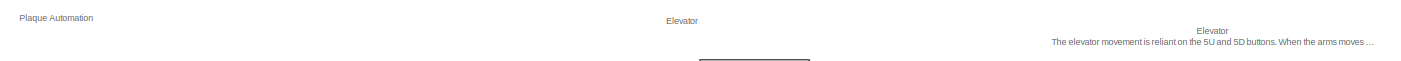
[diagram: root canvas - part 1/6, top center region]
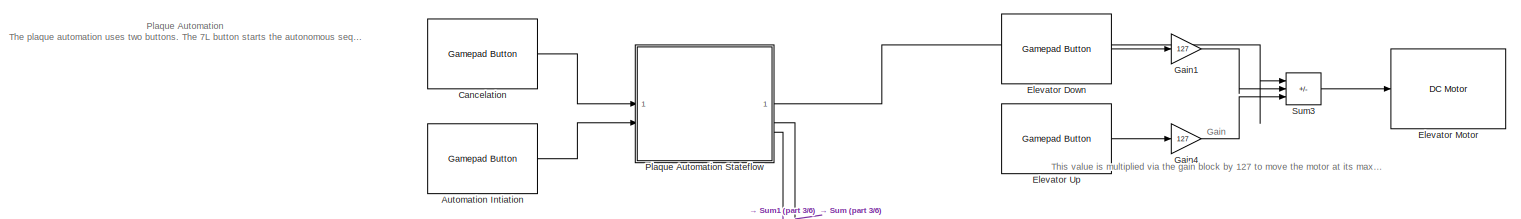
[diagram: root canvas - part 2/6, full width, top band]
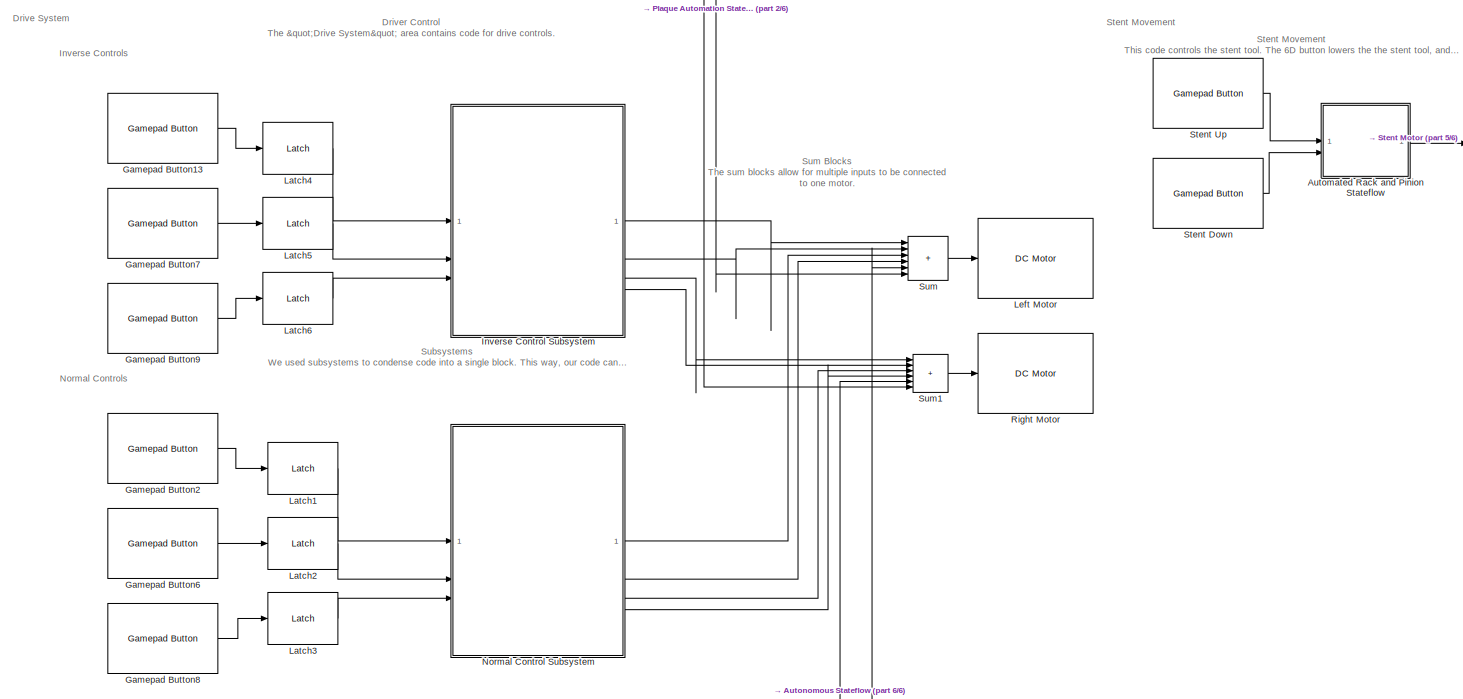
[diagram: root canvas - part 3/6, central region]
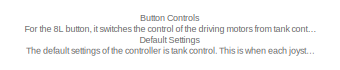
[diagram: root canvas - part 4/6, top left region]
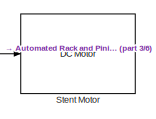
[diagram: root canvas - part 5/6, top right region]
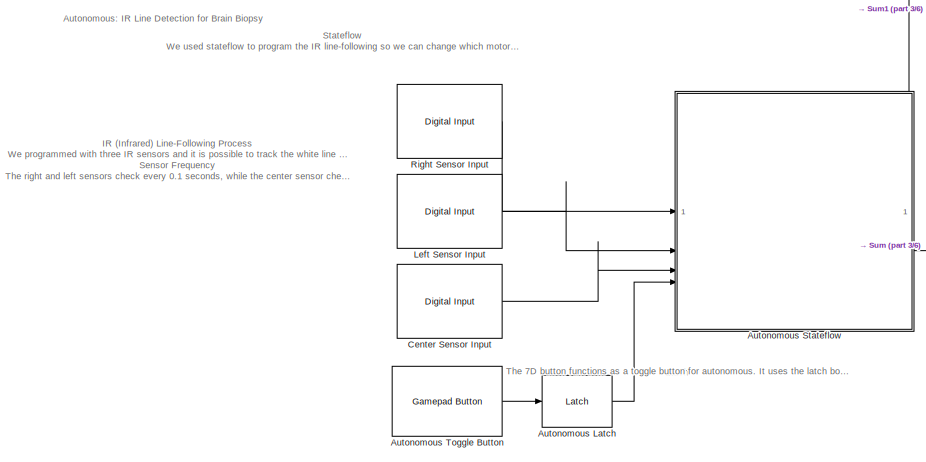
[diagram: root canvas - part 6/6, bottom center region]
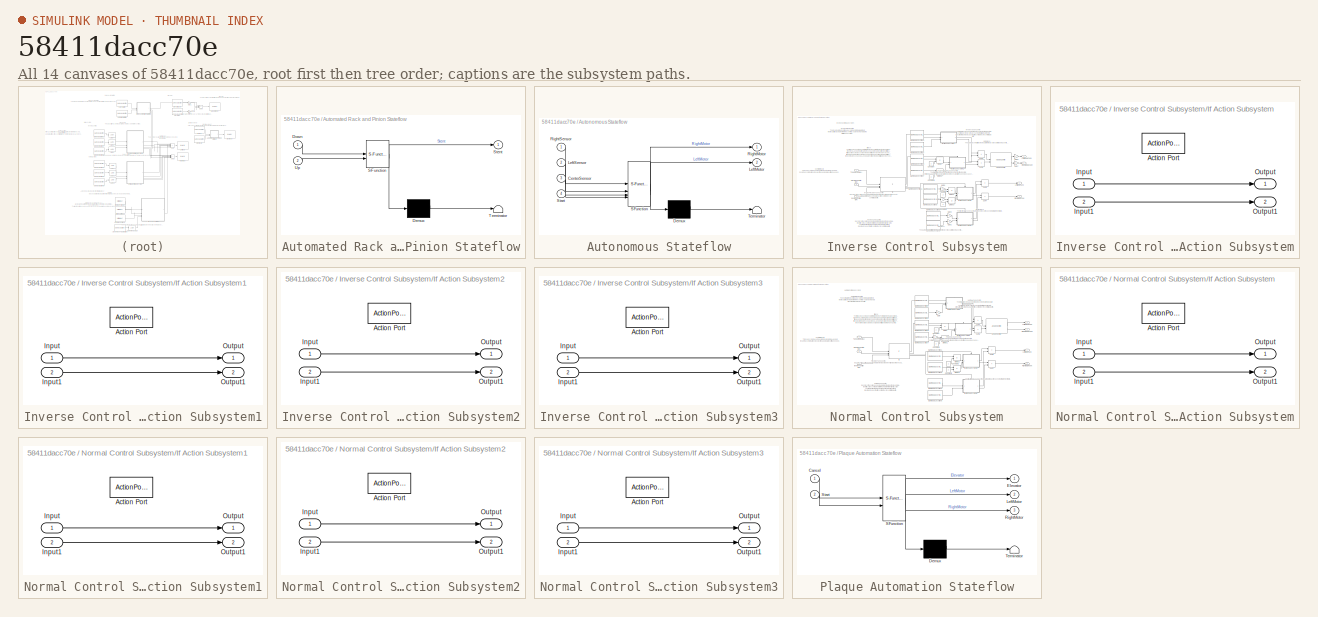
[diagram: thumbnail index - all 14 canvases of the model, root first then tree order]
MODEL slx_58411dacc70e
KIND model
CONFIG AbsTol = auto
CONFIG EnableMultiTasking = off
CONFIG FixedStep = auto
CONFIG MaxStep = auto
CONFIG MinStep = auto
CONFIG RelTol = 1e-3
CONFIG SampleTimeConstraint = Unconstrained
CONFIG SolverName = VariableStepAuto
CONFIG StartTime = 0.0
CONFIG StopTime = 10.0
BLOCK [SubSystem] Automated Rack and Pinion Stateflow
  AncestorBlock = RoboticsPlayground/Utilities and Hardware/Stateflow
  ErrorFcn = Stateflow.Translate.translate
  LibrarySourceBlock = RoboticsPlayground/Utilities and Hardware/Stateflow
  PermitHierarchicalResolution = ExplicitOnly
  SFBlockType = Chart
  TreatAsAtomicUnit = on
BLOCK [Demux] Automated Rack and Pinion Stateflow/ Demux 
  Outputs = 1
BLOCK [S-Function] Automated Rack and Pinion Stateflow/ SFunction 
  EnableBusSupport = on
  FunctionName = sf_sfun
  PortCounts = [2 2]
  SFcnIsStateOwnerBlock = off
  SFunctionDeploymentMode = off
  Tag = Stateflow S-Function 4
BLOCK [Terminator] Automated Rack and Pinion Stateflow/ Terminator 
BLOCK [Inport] Automated Rack and Pinion Stateflow/Down
BLOCK [Outport] Automated Rack and Pinion Stateflow/Stent
BLOCK [Inport] Automated Rack and Pinion Stateflow/Up
  Port = 2
BLOCK [Reference] Automation Intiation  REF=vexarmcortexlib/Gamepad/Gamepad Button
  SourceBlock = vexarmcortexlib/Gamepad/Gamepad Button
  SourceType = Gamepad Button
BLOCK [Reference] Autonomous Latch  REF=vexcommonlib/Latch
  LibrarySourceBlock = vexv5lib/Utilities/Latch
  SourceBlock = vexcommonlib/Latch
  SourceType = Latch
BLOCK [SubSystem] Autonomous Stateflow
  AncestorBlock = RoboticsPlayground/Utilities and Hardware/Stateflow
  ErrorFcn = Stateflow.Translate.translate
  LibrarySourceBlock = RoboticsPlayground/Utilities and Hardware/Stateflow
  PermitHierarchicalResolution = ExplicitOnly
  SFBlockType = Chart
  TreatAsAtomicUnit = on
BLOCK [Demux] Autonomous Stateflow/ Demux 
  Outputs = 1
BLOCK [S-Function] Autonomous Stateflow/ SFunction 
  EnableBusSupport = on
  FunctionName = sf_sfun
  PortCounts = [4 3]
  SFcnIsStateOwnerBlock = off
  SFunctionDeploymentMode = off
  Tag = Stateflow S-Function 3
BLOCK [Terminator] Autonomous Stateflow/ Terminator 
BLOCK [Inport] Autonomous Stateflow/CenterSensor
  Port = 3
BLOCK [Outport] Autonomous Stateflow/LeftMotor
  Port = 2
BLOCK [Inport] Autonomous Stateflow/LeftSensor
  Port = 2
BLOCK [Outport] Autonomous Stateflow/RightMotor
BLOCK [Inport] Autonomous Stateflow/RightSensor
BLOCK [Inport] Autonomous Stateflow/Start
  Port = 4
BLOCK [Reference] Autonomous Toggle Button  REF=vexarmcortexlib/Gamepad/Gamepad Button
  SourceBlock = vexarmcortexlib/Gamepad/Gamepad Button
  SourceType = Gamepad Button
BLOCK [Reference] Cancelation  REF=vexarmcortexlib/Gamepad/Gamepad Button
  SourceBlock = vexarmcortexlib/Gamepad/Gamepad Button
  SourceType = Gamepad Button
BLOCK [Reference] Center Sensor Input  REF=vexarmcortexlib/Sensors/Digital Input
  SourceBlock = vexarmcortexlib/Sensors/Digital Input
  SourceType = Digital Input
BLOCK [Reference] Elevator Down  REF=vexarmcortexlib/Gamepad/Gamepad Button
  SourceBlock = vexarmcortexlib/Gamepad/Gamepad Button
  SourceType = Gamepad Button
BLOCK [Reference] Elevator Motor  REF=vexarmcortexlib/Actuators/DC Motor
  SourceBlock = vexarmcortexlib/Actuators/DC Motor
  SourceType = DC Motor
BLOCK [Reference] Elevator Up  REF=vexarmcortexlib/Gamepad/Gamepad Button
  SourceBlock = vexarmcortexlib/Gamepad/Gamepad Button
  SourceType = Gamepad Button
BLOCK [Gain] Gain1
  Gain = 127
BLOCK [Gain] Gain4
  Gain = 127
BLOCK [Reference] Gamepad Button13  REF=vexarmcortexlib/Gamepad/Gamepad Button
  SourceBlock = vexarmcortexlib/Gamepad/Gamepad Button
  SourceType = Gamepad Button
BLOCK [Reference] Gamepad Button2  REF=vexarmcortexlib/Gamepad/Gamepad Button
  SourceBlock = vexarmcortexlib/Gamepad/Gamepad Button
  SourceType = Gamepad Button
BLOCK [Reference] Gamepad Button6  REF=vexarmcortexlib/Gamepad/Gamepad Button
  SourceBlock = vexarmcortexlib/Gamepad/Gamepad Button
  SourceType = Gamepad Button
BLOCK [Reference] Gamepad Button7  REF=vexarmcortexlib/Gamepad/Gamepad Button
  SourceBlock = vexarmcortexlib/Gamepad/Gamepad Button
  SourceType = Gamepad Button
BLOCK [Reference] Gamepad Button8  REF=vexarmcortexlib/Gamepad/Gamepad Button
  SourceBlock = vexarmcortexlib/Gamepad/Gamepad Button
  SourceType = Gamepad Button
BLOCK [Reference] Gamepad Button9  REF=vexarmcortexlib/Gamepad/Gamepad Button
  SourceBlock = vexarmcortexlib/Gamepad/Gamepad Button
  SourceType = Gamepad Button
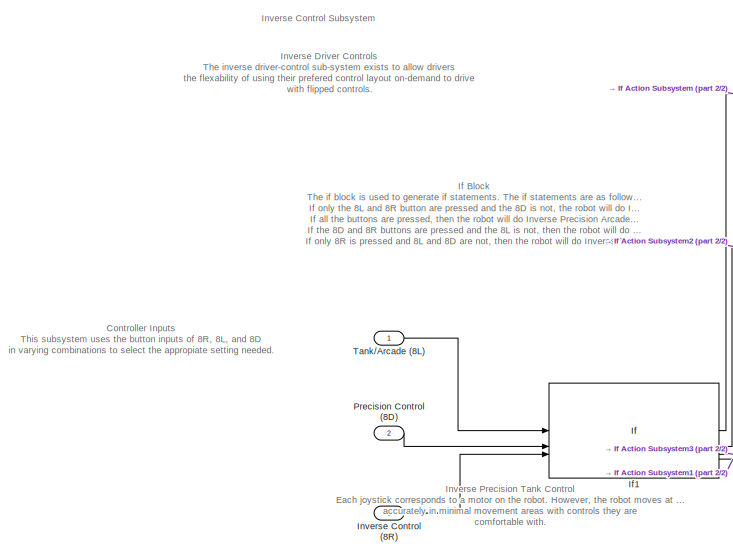
[diagram: Inverse Control Subsystem - part 1/2, middle left region]
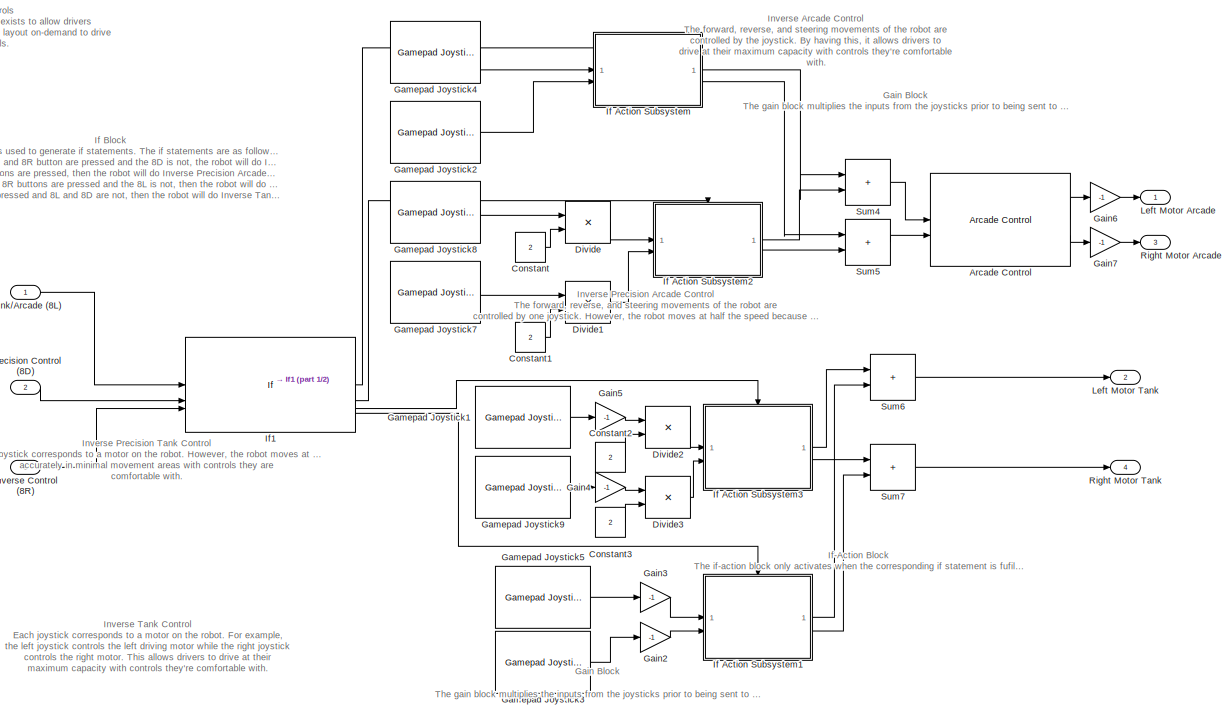
[diagram: Inverse Control Subsystem - part 2/2, most of the canvas]
BLOCK [SubSystem] Inverse Control Subsystem
BLOCK [Reference] Inverse Control Subsystem/Arcade Control  REF=RoboticsPlayground/Utilities and Hardware/Arcade Control
  SourceBlock = RoboticsPlayground/Utilities and Hardware/Arcade Control
  SourceProductName = Robotics Playground
BLOCK [Constant] Inverse Control Subsystem/Constant
  Value = 2
BLOCK [Constant] Inverse Control Subsystem/Constant1
  Value = 2
BLOCK [Constant] Inverse Control Subsystem/Constant2
  Value = 2
BLOCK [Constant] Inverse Control Subsystem/Constant3
  Value = 2
BLOCK [Product] Inverse Control Subsystem/Divide
  Inputs = */
BLOCK [Product] Inverse Control Subsystem/Divide1
  Inputs = */
BLOCK [Product] Inverse Control Subsystem/Divide2
  Inputs = */
BLOCK [Product] Inverse Control Subsystem/Divide3
  Inputs = */
BLOCK [Gain] Inverse Control Subsystem/Gain2
  Gain = -1
BLOCK [Gain] Inverse Control Subsystem/Gain3
  Gain = -1
BLOCK [Gain] Inverse Control Subsystem/Gain4
  Gain = -1
BLOCK [Gain] Inverse Control Subsystem/Gain5
  Gain = -1
BLOCK [Gain] Inverse Control Subsystem/Gain6
  Gain = -1
BLOCK [Gain] Inverse Control Subsystem/Gain7
  Gain = -1
BLOCK [Reference] Inverse Control Subsystem/Gamepad Joystick1  REF=vexarmcortexlib/Gamepad/Gamepad Joystick
  SourceBlock = vexarmcortexlib/Gamepad/Gamepad Joystick
  SourceType = Gamepad Joystick
BLOCK [Reference] Inverse Control Subsystem/Gamepad Joystick2  REF=vexarmcortexlib/Gamepad/Gamepad Joystick
  SourceBlock = vexarmcortexlib/Gamepad/Gamepad Joystick
  SourceType = Gamepad Joystick
BLOCK [Reference] Inverse Control Subsystem/Gamepad Joystick3  REF=vexarmcortexlib/Gamepad/Gamepad Joystick
  SourceBlock = vexarmcortexlib/Gamepad/Gamepad Joystick
  SourceType = Gamepad Joystick
BLOCK [Reference] Inverse Control Subsystem/Gamepad Joystick4  REF=vexarmcortexlib/Gamepad/Gamepad Joystick
  SourceBlock = vexarmcortexlib/Gamepad/Gamepad Joystick
  SourceType = Gamepad Joystick
BLOCK [Reference] Inverse Control Subsystem/Gamepad Joystick5  REF=vexarmcortexlib/Gamepad/Gamepad Joystick
  SourceBlock = vexarmcortexlib/Gamepad/Gamepad Joystick
  SourceType = Gamepad Joystick
BLOCK [Reference] Inverse Control Subsystem/Gamepad Joystick7  REF=vexarmcortexlib/Gamepad/Gamepad Joystick
  SourceBlock = vexarmcortexlib/Gamepad/Gamepad Joystick
  SourceType = Gamepad Joystick
BLOCK [Reference] Inverse Control Subsystem/Gamepad Joystick8  REF=vexarmcortexlib/Gamepad/Gamepad Joystick
  SourceBlock = vexarmcortexlib/Gamepad/Gamepad Joystick
  SourceType = Gamepad Joystick
BLOCK [Reference] Inverse Control Subsystem/Gamepad Joystick9  REF=vexarmcortexlib/Gamepad/Gamepad Joystick
  SourceBlock = vexarmcortexlib/Gamepad/Gamepad Joystick
  SourceType = Gamepad Joystick
BLOCK [SubSystem] Inverse Control Subsystem/If Action Subsystem
  TreatAsAtomicUnit = on
BLOCK [ActionPort] Inverse Control Subsystem/If Action Subsystem/Action Port
  ActionPortLabel = if((u1 == 1 & u2 == 0 & u3 == 1))
BLOCK [Inport] Inverse Control Subsystem/If Action Subsystem/Input
BLOCK [Inport] Inverse Control Subsystem/If Action Subsystem/Input1
  Port = 2
BLOCK [Outport] Inverse Control Subsystem/If Action Subsystem/Output
BLOCK [Outport] Inverse Control Subsystem/If Action Subsystem/Output1
  Port = 2
BLOCK [SubSystem] Inverse Control Subsystem/If Action Subsystem1
  TreatAsAtomicUnit = on
BLOCK [ActionPort] Inverse Control Subsystem/If Action Subsystem1/Action Port
  ActionPortLabel = elseif((u1 == 0 & u2 == 0 & u3 == 1))
BLOCK [Inport] Inverse Control Subsystem/If Action Subsystem1/Input
BLOCK [Inport] Inverse Control Subsystem/If Action Subsystem1/Input1
  Port = 2
BLOCK [Outport] Inverse Control Subsystem/If Action Subsystem1/Output
BLOCK [Outport] Inverse Control Subsystem/If Action Subsystem1/Output1
  Port = 2
BLOCK [SubSystem] Inverse Control Subsystem/If Action Subsystem2
  TreatAsAtomicUnit = on
BLOCK [ActionPort] Inverse Control Subsystem/If Action Subsystem2/Action Port
  ActionPortLabel = elseif((u1 == 1 & u2 == 1 & u3 == 1))
BLOCK [Inport] Inverse Control Subsystem/If Action Subsystem2/Input
BLOCK [Inport] Inverse Control Subsystem/If Action Subsystem2/Input1
  Port = 2
BLOCK [Outport] Inverse Control Subsystem/If Action Subsystem2/Output
BLOCK [Outport] Inverse Control Subsystem/If Action Subsystem2/Output1
  Port = 2
BLOCK [SubSystem] Inverse Control Subsystem/If Action Subsystem3
  TreatAsAtomicUnit = on
BLOCK [ActionPort] Inverse Control Subsystem/If Action Subsystem3/Action Port
  ActionPortLabel = elseif((u1 == 0 & u2 == 1 & u3 == 1))
BLOCK [Inport] Inverse Control Subsystem/If Action Subsystem3/Input
BLOCK [Inport] Inverse Control Subsystem/If Action Subsystem3/Input1
  Port = 2
BLOCK [Outport] Inverse Control Subsystem/If Action Subsystem3/Output
BLOCK [Outport] Inverse Control Subsystem/If Action Subsystem3/Output1
  Port = 2
BLOCK [If] Inverse Control Subsystem/If1
  ElseIfExpressions = (u1 == 1 & u2 == 1 & u3 == 1),(u1 == 0 & u2 == 1 & u3 == 1),(u1 == 0 & u2 == 0 & u3 == 1)
  IfExpression = (u1 == 1 & u2 == 0 & u3 == 1)
  NumInputs = 3
  ShowElse = off
BLOCK [Inport] Inverse Control Subsystem/Inverse Control (8R)
  Port = 3
BLOCK [Outport] Inverse Control Subsystem/Left Motor Arcade
BLOCK [Outport] Inverse Control Subsystem/Left Motor Tank
  Port = 2
BLOCK [Inport] Inverse Control Subsystem/Precision Control (8D)
  Port = 2
BLOCK [Outport] Inverse Control Subsystem/Right Motor Arcade
  Port = 3
BLOCK [Outport] Inverse Control Subsystem/Right Motor Tank
  Port = 4
BLOCK [Sum] Inverse Control Subsystem/Sum4
  IconShape = rectangular
  Inputs = |++
BLOCK [Sum] Inverse Control Subsystem/Sum5
  IconShape = rectangular
  Inputs = |++
BLOCK [Sum] Inverse Control Subsystem/Sum6
  IconShape = rectangular
  Inputs = |++
BLOCK [Sum] Inverse Control Subsystem/Sum7
  IconShape = rectangular
  Inputs = |++
BLOCK [Inport] Inverse Control Subsystem/Tank//Arcade (8L)
BLOCK [Reference] Latch1  REF=vexcommonlib/Latch
  LibrarySourceBlock = vexv5lib/Utilities/Latch
  SourceBlock = vexcommonlib/Latch
  SourceType = Latch
BLOCK [Reference] Latch2  REF=vexcommonlib/Latch
  LibrarySourceBlock = vexv5lib/Utilities/Latch
  SourceBlock = vexcommonlib/Latch
  SourceType = Latch
BLOCK [Reference] Latch3  REF=vexcommonlib/Latch
  LibrarySourceBlock = vexv5lib/Utilities/Latch
  SourceBlock = vexcommonlib/Latch
  SourceType = Latch
BLOCK [Reference] Latch4  REF=vexcommonlib/Latch
  LibrarySourceBlock = vexv5lib/Utilities/Latch
  SourceBlock = vexcommonlib/Latch
  SourceType = Latch
BLOCK [Reference] Latch5  REF=vexcommonlib/Latch
  LibrarySourceBlock = vexv5lib/Utilities/Latch
  SourceBlock = vexcommonlib/Latch
  SourceType = Latch
BLOCK [Reference] Latch6  REF=vexcommonlib/Latch
  LibrarySourceBlock = vexv5lib/Utilities/Latch
  SourceBlock = vexcommonlib/Latch
  SourceType = Latch
BLOCK [Reference] Left Motor  REF=vexarmcortexlib/Actuators/DC Motor
  SourceBlock = vexarmcortexlib/Actuators/DC Motor
  SourceType = DC Motor
BLOCK [Reference] Left Sensor Input  REF=vexarmcortexlib/Sensors/Digital Input
  SourceBlock = vexarmcortexlib/Sensors/Digital Input
  SourceType = Digital Input
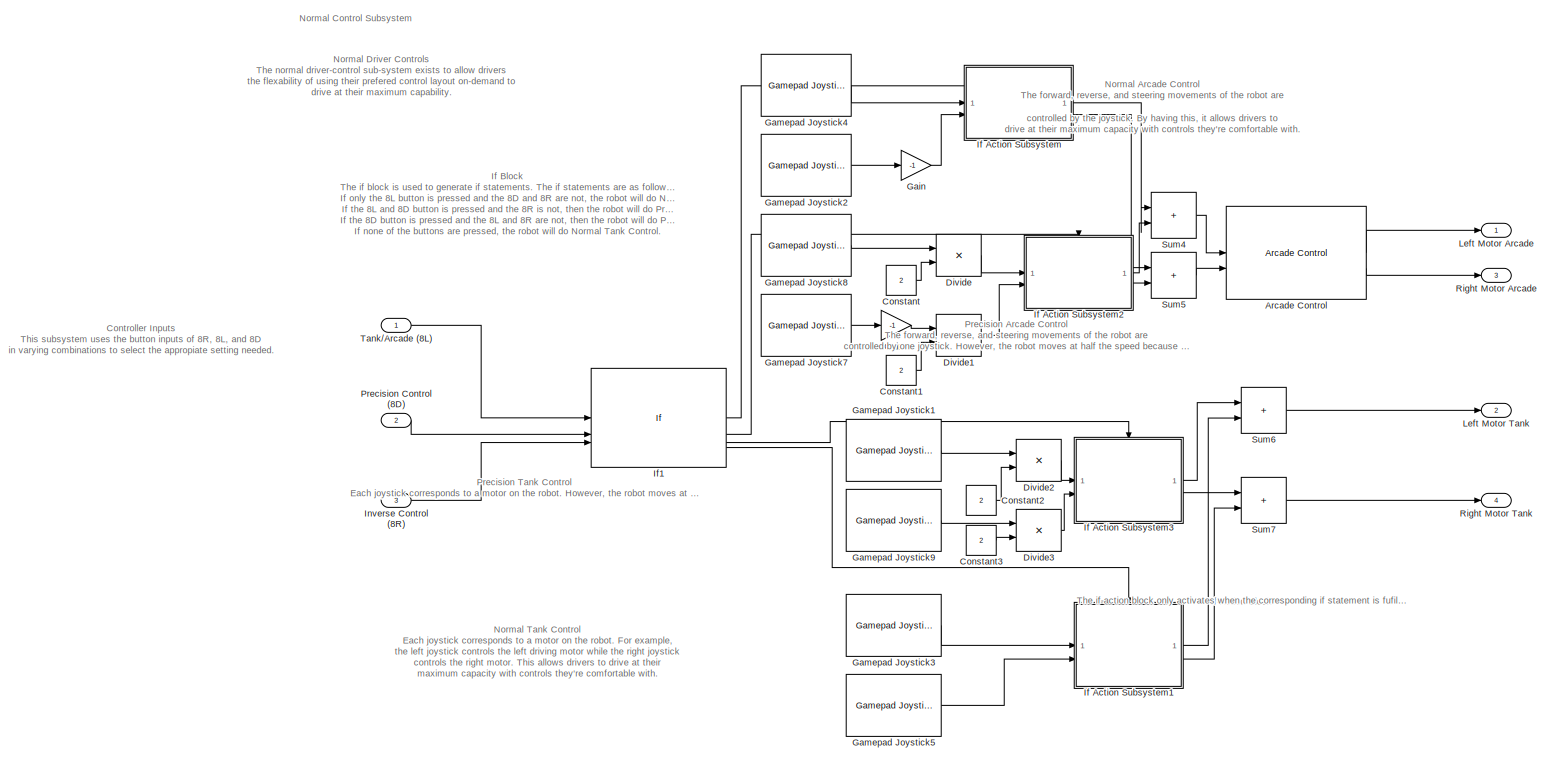
[diagram: Normal Control Subsystem - part 1/1, most of the canvas]
BLOCK [SubSystem] Normal Control Subsystem
BLOCK [Reference] Normal Control Subsystem/Arcade Control  REF=RoboticsPlayground/Utilities and Hardware/Arcade Control
  SourceBlock = RoboticsPlayground/Utilities and Hardware/Arcade Control
  SourceProductName = Robotics Playground
BLOCK [Constant] Normal Control Subsystem/Constant
  Value = 2
BLOCK [Constant] Normal Control Subsystem/Constant1
  Value = 2
BLOCK [Constant] Normal Control Subsystem/Constant2
  Value = 2
BLOCK [Constant] Normal Control Subsystem/Constant3
  Value = 2
BLOCK [Product] Normal Control Subsystem/Divide
  Inputs = */
BLOCK [Product] Normal Control Subsystem/Divide1
  Inputs = */
BLOCK [Product] Normal Control Subsystem/Divide2
  Inputs = */
BLOCK [Product] Normal Control Subsystem/Divide3
  Inputs = */
BLOCK [Gain] Normal Control Subsystem/Gain
  Gain = -1
BLOCK [Gain] Normal Control Subsystem/Gain1
  Gain = -1
BLOCK [Reference] Normal Control Subsystem/Gamepad Joystick1  REF=vexarmcortexlib/Gamepad/Gamepad Joystick
  SourceBlock = vexarmcortexlib/Gamepad/Gamepad Joystick
  SourceType = Gamepad Joystick
BLOCK [Reference] Normal Control Subsystem/Gamepad Joystick2  REF=vexarmcortexlib/Gamepad/Gamepad Joystick
  SourceBlock = vexarmcortexlib/Gamepad/Gamepad Joystick
  SourceType = Gamepad Joystick
BLOCK [Reference] Normal Control Subsystem/Gamepad Joystick3  REF=vexarmcortexlib/Gamepad/Gamepad Joystick
  SourceBlock = vexarmcortexlib/Gamepad/Gamepad Joystick
  SourceType = Gamepad Joystick
BLOCK [Reference] Normal Control Subsystem/Gamepad Joystick4  REF=vexarmcortexlib/Gamepad/Gamepad Joystick
  SourceBlock = vexarmcortexlib/Gamepad/Gamepad Joystick
  SourceType = Gamepad Joystick
BLOCK [Reference] Normal Control Subsystem/Gamepad Joystick5  REF=vexarmcortexlib/Gamepad/Gamepad Joystick
  SourceBlock = vexarmcortexlib/Gamepad/Gamepad Joystick
  SourceType = Gamepad Joystick
BLOCK [Reference] Normal Control Subsystem/Gamepad Joystick7  REF=vexarmcortexlib/Gamepad/Gamepad Joystick
  SourceBlock = vexarmcortexlib/Gamepad/Gamepad Joystick
  SourceType = Gamepad Joystick
BLOCK [Reference] Normal Control Subsystem/Gamepad Joystick8  REF=vexarmcortexlib/Gamepad/Gamepad Joystick
  SourceBlock = vexarmcortexlib/Gamepad/Gamepad Joystick
  SourceType = Gamepad Joystick
BLOCK [Reference] Normal Control Subsystem/Gamepad Joystick9  REF=vexarmcortexlib/Gamepad/Gamepad Joystick
  SourceBlock = vexarmcortexlib/Gamepad/Gamepad Joystick
  SourceType = Gamepad Joystick
BLOCK [SubSystem] Normal Control Subsystem/If Action Subsystem
  TreatAsAtomicUnit = on
BLOCK [ActionPort] Normal Control Subsystem/If Action Subsystem/Action Port
  ActionPortLabel = if((u1 == 1 & u2 == 0 & u3 == 0))
BLOCK [Inport] Normal Control Subsystem/If Action Subsystem/Input
BLOCK [Inport] Normal Control Subsystem/If Action Subsystem/Input1
  Port = 2
BLOCK [Outport] Normal Control Subsystem/If Action Subsystem/Output
BLOCK [Outport] Normal Control Subsystem/If Action Subsystem/Output1
  Port = 2
BLOCK [SubSystem] Normal Control Subsystem/If Action Subsystem1
  TreatAsAtomicUnit = on
BLOCK [ActionPort] Normal Control Subsystem/If Action Subsystem1/Action Port
  ActionPortLabel = elseif((u1 == 0 & u2 == 0 & u3 == 0))
BLOCK [Inport] Normal Control Subsystem/If Action Subsystem1/Input
BLOCK [Inport] Normal Control Subsystem/If Action Subsystem1/Input1
  Port = 2
BLOCK [Outport] Normal Control Subsystem/If Action Subsystem1/Output
BLOCK [Outport] Normal Control Subsystem/If Action Subsystem1/Output1
  Port = 2
BLOCK [SubSystem] Normal Control Subsystem/If Action Subsystem2
  TreatAsAtomicUnit = on
BLOCK [ActionPort] Normal Control Subsystem/If Action Subsystem2/Action Port
  ActionPortLabel = elseif((u1 == 1 & u2 == 1 & u3 == 0))
BLOCK [Inport] Normal Control Subsystem/If Action Subsystem2/Input
BLOCK [Inport] Normal Control Subsystem/If Action Subsystem2/Input1
  Port = 2
BLOCK [Outport] Normal Control Subsystem/If Action Subsystem2/Output
BLOCK [Outport] Normal Control Subsystem/If Action Subsystem2/Output1
  Port = 2
BLOCK [SubSystem] Normal Control Subsystem/If Action Subsystem3
  TreatAsAtomicUnit = on
BLOCK [ActionPort] Normal Control Subsystem/If Action Subsystem3/Action Port
  ActionPortLabel = elseif((u1 == 0 & u2 == 1 & u3 == 0))
BLOCK [Inport] Normal Control Subsystem/If Action Subsystem3/Input
BLOCK [Inport] Normal Control Subsystem/If Action Subsystem3/Input1
  Port = 2
BLOCK [Outport] Normal Control Subsystem/If Action Subsystem3/Output
BLOCK [Outport] Normal Control Subsystem/If Action Subsystem3/Output1
  Port = 2
BLOCK [If] Normal Control Subsystem/If1
  ElseIfExpressions = (u1 == 1 & u2 == 1 & u3 == 0),(u1 == 0 & u2 == 1 & u3 == 0),(u1 == 0 & u2 == 0 & u3 == 0)
  IfExpression = (u1 == 1 & u2 == 0 & u3 == 0)
  NumInputs = 3
  ShowElse = off
BLOCK [Inport] Normal Control Subsystem/Inverse Control (8R)
  Port = 3
BLOCK [Outport] Normal Control Subsystem/Left Motor Arcade
BLOCK [Outport] Normal Control Subsystem/Left Motor Tank
  Port = 2
BLOCK [Inport] Normal Control Subsystem/Precision Control (8D)
  Port = 2
BLOCK [Outport] Normal Control Subsystem/Right Motor Arcade
  Port = 3
BLOCK [Outport] Normal Control Subsystem/Right Motor Tank
  Port = 4
BLOCK [Sum] Normal Control Subsystem/Sum4
  IconShape = rectangular
  Inputs = |++
BLOCK [Sum] Normal Control Subsystem/Sum5
  IconShape = rectangular
  Inputs = |++
BLOCK [Sum] Normal Control Subsystem/Sum6
  IconShape = rectangular
  Inputs = |++
BLOCK [Sum] Normal Control Subsystem/Sum7
  IconShape = rectangular
  Inputs = |++
BLOCK [Inport] Normal Control Subsystem/Tank//Arcade (8L)
BLOCK [SubSystem] Plaque Automation Stateflow
  AncestorBlock = RoboticsPlayground/Utilities and Hardware/Stateflow
  ErrorFcn = Stateflow.Translate.translate
  LibrarySourceBlock = RoboticsPlayground/Utilities and Hardware/Stateflow
  PermitHierarchicalResolution = ExplicitOnly
  SFBlockType = Chart
  TreatAsAtomicUnit = on
BLOCK [Demux] Plaque Automation Stateflow/ Demux 
  Outputs = 1
BLOCK [S-Function] Plaque Automation Stateflow/ SFunction 
  EnableBusSupport = on
  FunctionName = sf_sfun
  PortCounts = [2 4]
  SFcnIsStateOwnerBlock = off
  SFunctionDeploymentMode = off
  Tag = Stateflow S-Function 1
BLOCK [Terminator] Plaque Automation Stateflow/ Terminator 
BLOCK [Inport] Plaque Automation Stateflow/Cancel
BLOCK [Outport] Plaque Automation Stateflow/Elevator
BLOCK [Outport] Plaque Automation Stateflow/LeftMotor
  Port = 2
BLOCK [Outport] Plaque Automation Stateflow/RightMotor
  Port = 3
BLOCK [Inport] Plaque Automation Stateflow/Start
  Port = 2
BLOCK [Reference] Right Motor  REF=vexarmcortexlib/Actuators/DC Motor
  SourceBlock = vexarmcortexlib/Actuators/DC Motor
  SourceType = DC Motor
BLOCK [Reference] Right Sensor Input  REF=vexarmcortexlib/Sensors/Digital Input
  SourceBlock = vexarmcortexlib/Sensors/Digital Input
  SourceType = Digital Input
BLOCK [Reference] Stent Down  REF=vexarmcortexlib/Gamepad/Gamepad Button
  SourceBlock = vexarmcortexlib/Gamepad/Gamepad Button
  SourceType = Gamepad Button
BLOCK [Reference] Stent Motor  REF=vexarmcortexlib/Actuators/DC Motor
  SourceBlock = vexarmcortexlib/Actuators/DC Motor
  SourceType = DC Motor
BLOCK [Reference] Stent Up  REF=vexarmcortexlib/Gamepad/Gamepad Button
  SourceBlock = vexarmcortexlib/Gamepad/Gamepad Button
  SourceType = Gamepad Button
BLOCK [Sum] Sum
  IconShape = rectangular
  Inputs = |++++++
BLOCK [Sum] Sum1
  IconShape = rectangular
  Inputs = |++++++
BLOCK [Sum] Sum3
  IconShape = rectangular
  Inputs = |++-
ANNOTATION (root): Stent Movement This code controls the stent tool. The 6D button lowers the the stent tool, and the 6U button raises the stent tool up.
ANNOTATION (root): Button Controls For the 8L button, it switches the control of the driving motors from tank control to arcade control. The 8D button switches the robot to precision control (robot moves at slower speed). The 8R button inverses the driver controls. Default Settings The default settings of the controller is tank control. This is when each joystick controls a driving motor.
ANNOTATION (root): Driver Control The "Drive System" area contains code for drive controls.
ANNOTATION (root): IR (Infrared) Line-Following Process We programmed with three IR sensors and it is possible to track the white line with one or two sensors. However, using three provides accurate and correct results. The direction the sensors was named when the robot is viewed from the front. The robot is also moving backwards in this Line-Following Process. Sensor Frequency The right and left sensors check every...<+63ch>
ANNOTATION (root): Latch The 7D button functions as a toggle button for autonomous. It uses the latch box to toggle the output based on the input. The latch block retains the value sent into it.
ANNOTATION (root): Plaque Automation The plaque automation uses two buttons. The 7L button starts the autonomous sequence and the 7U button cancels the autonomous sequence. These inputs are funnelled into stateflow, and the outputs are connected to the elevator motor, and the left and right drive motors.
ANNOTATION (root): Stateflow We used stateflow to program the IR line-following so we can change which motors need to spin in a certain direction in accordance to the sensor inputs. This works due to a condition-based system.
ANNOTATION (root): Subsystems We used subsystems to condense code into a single block. This way, our code can look neater.
ANNOTATION (root): Sum Blocks The sum blocks allow for multiple inputs to be connected to one motor.
ANNOTATION (root): Elevator The elevator movement is reliant on the 5U and 5D buttons. When the arms moves up, it's moving in the positive direction, and when moving downwards, it's in the negative direction. The value sent by the button is 1 when pressed and 0 when unpressed.
ANNOTATION (root): Gain This value is multiplied via the gain block by 127 to move the motor at its max speed. The gain block multiplies the inputs sent into it.
ANNOTATION (root): Autonomous: IR Line Detection for Brain Biopsy
ANNOTATION (root): Drive System
ANNOTATION (root): Elevator
ANNOTATION (root): Inverse Controls
ANNOTATION (root): Normal Controls
ANNOTATION (root): Plaque Automation
ANNOTATION (root): Stent Movement
ANNOTATION Inverse Control Subsystem: If Block The if block is used to generate if statements. The if statements are as follows: If only the 8L and 8R button are pressed and the 8D is not, the robot will do Inverse Arcade Control. If all the buttons are pressed, then the robot will do Inverse Precision Arcade Control. If the 8D and 8R buttons are pressed and the 8L is not, then the robot will do Inverse Precison Tank Control. If only ...<+81ch>
ANNOTATION Inverse Control Subsystem: If-Action Block The if-action block only activates when the corresponding if statement is fufilled. From there if this block is activated then the code connected to this block will run, and the rest of the code in this subsystem will not.
ANNOTATION Inverse Control Subsystem: Controller Inputs This subsystem uses the button inputs of 8R, 8L, and 8D in varying combinations to select the appropiate setting needed.
ANNOTATION Inverse Control Subsystem: Gain Block The gain block multiplies the inputs from the joysticks prior to being sent to the motor. By multiplying these inputs by -1, the gain flips the controls of the motor. This makes the robot drive backwards instead of forward, which is important for this inverse drive control code.
ANNOTATION Inverse Control Subsystem: Inverse Arcade Control The forward, reverse, and steering movements of the robot are controlled by the joystick. By having this, it allows drivers to drive at their maximum capacity with controls they're comfortable with.
ANNOTATION Inverse Control Subsystem: Inverse Driver Controls The inverse driver-control sub-system exists to allow drivers the flexability of using their prefered control layout on-demand to drive with flipped controls.
ANNOTATION Inverse Control Subsystem: Inverse Precision Arcade Control The forward, reverse, and steering movements of the robot are controlled by one joystick. However, the robot moves at half the speed because the joystick inputs are divided by two utilizing the divide block. This allows drivers to drive accurately with minimal movement in tight spaces.
ANNOTATION Inverse Control Subsystem: Inverse Precision Tank Control Each joystick corresponds to a motor on the robot. However, the robot moves at half the speed because the joystick inputs are divided by two utilizing the divide block. This allows drivers to drive accurately in minimal movement areas with controls they are comfortable with.
ANNOTATION Inverse Control Subsystem: Inverse Tank Control Each joystick corresponds to a motor on the robot. For example, the left joystick controls the left driving motor while the right joystick controls the right motor. This allows drivers to drive at their maximum capacity with controls they're comfortable with.
ANNOTATION Inverse Control Subsystem: Inverse Control Subsystem
ANNOTATION Normal Control Subsystem: If Block The if block is used to generate if statements. The if statements are as follows: If only the 8L button is pressed and the 8D and 8R are not, the robot will do Normal Arcade Control. If the 8L and 8D button is pressed and the 8R is not, then the robot will do Precision Arcade Control. If the 8D button is pressed and the 8L and 8R are not, then the robot will do Precison Tank Control. If n...<+70ch>
ANNOTATION Normal Control Subsystem: If-Action Block The if-action block only activates when the corresponding if statement is fufilled. From there if this block is activated then the code connected to this block will run, and the rest of the code in this subsystem will not.
ANNOTATION Normal Control Subsystem: Controller Inputs This subsystem uses the button inputs of 8R, 8L, and 8D in varying combinations to select the appropiate setting needed.
ANNOTATION Normal Control Subsystem: Normal Arcade Control The forward, reverse, and steering movements of the robot are controlled by the joystick. By having this, it allows drivers to drive at their maximum capacity with controls they're comfortable with.
ANNOTATION Normal Control Subsystem: Normal Driver Controls The normal driver-control sub-system exists to allow drivers the flexability of using their prefered control layout on-demand to drive at their maximum capability.
ANNOTATION Normal Control Subsystem: Normal Tank Control Each joystick corresponds to a motor on the robot. For example, the left joystick controls the left driving motor while the right joystick controls the right motor. This allows drivers to drive at their maximum capacity with controls they're comfortable with.
ANNOTATION Normal Control Subsystem: Precision Arcade Control The forward, reverse, and steering movements of the robot are controlled by one joystick. However, the robot moves at half the speed because the joystick inputs are divide by two utilizing the divide block. This allows drivers to drive accurately with minimal movement in tight spaces.
ANNOTATION Normal Control Subsystem: Precision Tank Control Each joystick corresponds to a motor on the robot. However, the robot moves at half the speed because the joystick inputs are divide by two utilizing the divide block. This allows drivers to drive accurately with minimal movement in tight spaces.
ANNOTATION Normal Control Subsystem: Normal Control Subsystem
LINE Automated Rack and Pinion Stateflow:1 -> Stent Motor:1
LINE Automation Intiation:1 -> Plaque Automation Stateflow:2
LINE Autonomous Latch:1 -> Autonomous Stateflow:4
LINE Autonomous Stateflow:1 -> Sum1:5
LINE Autonomous Stateflow:2 -> Sum:5
LINE Autonomous Toggle Button:1 -> Autonomous Latch:1
LINE Cancelation:1 -> Plaque Automation Stateflow:1
LINE Center Sensor Input:1 -> Autonomous Stateflow:3
LINE Elevator Down:1 -> Gain1:1
LINE Elevator Up:1 -> Gain4:1
LINE Gain1:1 -> Sum3:2
LINE Gain4:1 -> Sum3:3
LINE Gamepad Button13:1 -> Latch4:1
LINE Gamepad Button2:1 -> Latch1:1
LINE Gamepad Button6:1 -> Latch2:1
LINE Gamepad Button7:1 -> Latch5:1
LINE Gamepad Button8:1 -> Latch3:1
LINE Gamepad Button9:1 -> Latch6:1
LINE Inverse Control Subsystem/Arcade Control:1 -> Inverse Control Subsystem/Gain6:1
LINE Inverse Control Subsystem/Arcade Control:2 -> Inverse Control Subsystem/Gain7:1
LINE Inverse Control Subsystem/Constant1:1 -> Inverse Control Subsystem/Divide1:2
LINE Inverse Control Subsystem/Constant2:1 -> Inverse Control Subsystem/Divide2:2
LINE Inverse Control Subsystem/Constant3:1 -> Inverse Control Subsystem/Divide3:2
LINE Inverse Control Subsystem/Constant:1 -> Inverse Control Subsystem/Divide:2
LINE Inverse Control Subsystem/Divide1:1 -> Inverse Control Subsystem/If Action Subsystem2:2
LINE Inverse Control Subsystem/Divide2:1 -> Inverse Control Subsystem/If Action Subsystem3:1
LINE Inverse Control Subsystem/Divide3:1 -> Inverse Control Subsystem/If Action Subsystem3:2
LINE Inverse Control Subsystem/Divide:1 -> Inverse Control Subsystem/If Action Subsystem2:1
LINE Inverse Control Subsystem/Gain2:1 -> Inverse Control Subsystem/If Action Subsystem1:2
LINE Inverse Control Subsystem/Gain3:1 -> Inverse Control Subsystem/If Action Subsystem1:1
LINE Inverse Control Subsystem/Gain4:1 -> Inverse Control Subsystem/Divide3:1
LINE Inverse Control Subsystem/Gain5:1 -> Inverse Control Subsystem/Divide2:1
LINE Inverse Control Subsystem/Gain6:1 -> Inverse Control Subsystem/Left Motor Arcade:1
LINE Inverse Control Subsystem/Gain7:1 -> Inverse Control Subsystem/Right Motor Arcade:1
LINE Inverse Control Subsystem/Gamepad Joystick1:1 -> Inverse Control Subsystem/Gain5:1
LINE Inverse Control Subsystem/Gamepad Joystick2:1 -> Inverse Control Subsystem/If Action Subsystem:2
LINE Inverse Control Subsystem/Gamepad Joystick3:1 -> Inverse Control Subsystem/Gain2:1
LINE Inverse Control Subsystem/Gamepad Joystick4:1 -> Inverse Control Subsystem/If Action Subsystem:1
LINE Inverse Control Subsystem/Gamepad Joystick5:1 -> Inverse Control Subsystem/Gain3:1
LINE Inverse Control Subsystem/Gamepad Joystick7:1 -> Inverse Control Subsystem/Divide1:1
LINE Inverse Control Subsystem/Gamepad Joystick8:1 -> Inverse Control Subsystem/Divide:1
LINE Inverse Control Subsystem/Gamepad Joystick9:1 -> Inverse Control Subsystem/Gain4:1
LINE Inverse Control Subsystem/If Action Subsystem/Input1:1 -> Inverse Control Subsystem/If Action Subsystem/Output1:1
LINE Inverse Control Subsystem/If Action Subsystem/Input:1 -> Inverse Control Subsystem/If Action Subsystem/Output:1
LINE Inverse Control Subsystem/If Action Subsystem1/Input1:1 -> Inverse Control Subsystem/If Action Subsystem1/Output1:1
LINE Inverse Control Subsystem/If Action Subsystem1/Input:1 -> Inverse Control Subsystem/If Action Subsystem1/Output:1
LINE Inverse Control Subsystem/If Action Subsystem1:1 -> Inverse Control Subsystem/Sum6:2
LINE Inverse Control Subsystem/If Action Subsystem1:2 -> Inverse Control Subsystem/Sum7:2
LINE Inverse Control Subsystem/If Action Subsystem2/Input1:1 -> Inverse Control Subsystem/If Action Subsystem2/Output1:1
LINE Inverse Control Subsystem/If Action Subsystem2/Input:1 -> Inverse Control Subsystem/If Action Subsystem2/Output:1
LINE Inverse Control Subsystem/If Action Subsystem2:1 -> Inverse Control Subsystem/Sum4:2
LINE Inverse Control Subsystem/If Action Subsystem2:2 -> Inverse Control Subsystem/Sum5:2
LINE Inverse Control Subsystem/If Action Subsystem3/Input1:1 -> Inverse Control Subsystem/If Action Subsystem3/Output1:1
LINE Inverse Control Subsystem/If Action Subsystem3/Input:1 -> Inverse Control Subsystem/If Action Subsystem3/Output:1
LINE Inverse Control Subsystem/If Action Subsystem3:1 -> Inverse Control Subsystem/Sum6:1
LINE Inverse Control Subsystem/If Action Subsystem3:2 -> Inverse Control Subsystem/Sum7:1
LINE Inverse Control Subsystem/If Action Subsystem:1 -> Inverse Control Subsystem/Sum4:1
LINE Inverse Control Subsystem/If Action Subsystem:2 -> Inverse Control Subsystem/Sum5:1
LINE Inverse Control Subsystem/If1:1 -> Inverse Control Subsystem/If Action Subsystem:ifaction
LINE Inverse Control Subsystem/If1:2 -> Inverse Control Subsystem/If Action Subsystem2:ifaction
LINE Inverse Control Subsystem/If1:3 -> Inverse Control Subsystem/If Action Subsystem3:ifaction
LINE Inverse Control Subsystem/If1:4 -> Inverse Control Subsystem/If Action Subsystem1:ifaction
LINE Inverse Control Subsystem/Inverse Control (8R):1 -> Inverse Control Subsystem/If1:3
LINE Inverse Control Subsystem/Precision Control (8D):1 -> Inverse Control Subsystem/If1:2
LINE Inverse Control Subsystem/Sum4:1 -> Inverse Control Subsystem/Arcade Control:1
LINE Inverse Control Subsystem/Sum5:1 -> Inverse Control Subsystem/Arcade Control:2
LINE Inverse Control Subsystem/Sum6:1 -> Inverse Control Subsystem/Left Motor Tank:1
LINE Inverse Control Subsystem/Sum7:1 -> Inverse Control Subsystem/Right Motor Tank:1
LINE Inverse Control Subsystem/Tank//Arcade (8L):1 -> Inverse Control Subsystem/If1:1
LINE Inverse Control Subsystem:1 -> Sum:1
LINE Inverse Control Subsystem:2 -> Sum:2
LINE Inverse Control Subsystem:3 -> Sum1:1
LINE Inverse Control Subsystem:4 -> Sum1:2
LINE Latch1:1 -> Normal Control Subsystem:1
LINE Latch2:1 -> Normal Control Subsystem:2
LINE Latch3:1 -> Normal Control Subsystem:3
LINE Latch4:1 -> Inverse Control Subsystem:1
LINE Latch5:1 -> Inverse Control Subsystem:2
LINE Latch6:1 -> Inverse Control Subsystem:3
LINE Left Sensor Input:1 -> Autonomous Stateflow:2
LINE Normal Control Subsystem/Arcade Control:1 -> Normal Control Subsystem/Left Motor Arcade:1
LINE Normal Control Subsystem/Arcade Control:2 -> Normal Control Subsystem/Right Motor Arcade:1
LINE Normal Control Subsystem/Constant1:1 -> Normal Control Subsystem/Divide1:2
LINE Normal Control Subsystem/Constant2:1 -> Normal Control Subsystem/Divide2:2
LINE Normal Control Subsystem/Constant3:1 -> Normal Control Subsystem/Divide3:2
LINE Normal Control Subsystem/Constant:1 -> Normal Control Subsystem/Divide:2
LINE Normal Control Subsystem/Divide1:1 -> Normal Control Subsystem/If Action Subsystem2:2
LINE Normal Control Subsystem/Divide2:1 -> Normal Control Subsystem/If Action Subsystem3:1
LINE Normal Control Subsystem/Divide3:1 -> Normal Control Subsystem/If Action Subsystem3:2
LINE Normal Control Subsystem/Divide:1 -> Normal Control Subsystem/If Action Subsystem2:1
LINE Normal Control Subsystem/Gain1:1 -> Normal Control Subsystem/Divide1:1
LINE Normal Control Subsystem/Gain:1 -> Normal Control Subsystem/If Action Subsystem:2
LINE Normal Control Subsystem/Gamepad Joystick1:1 -> Normal Control Subsystem/Divide2:1
LINE Normal Control Subsystem/Gamepad Joystick2:1 -> Normal Control Subsystem/Gain:1
LINE Normal Control Subsystem/Gamepad Joystick3:1 -> Normal Control Subsystem/If Action Subsystem1:1
LINE Normal Control Subsystem/Gamepad Joystick4:1 -> Normal Control Subsystem/If Action Subsystem:1
LINE Normal Control Subsystem/Gamepad Joystick5:1 -> Normal Control Subsystem/If Action Subsystem1:2
LINE Normal Control Subsystem/Gamepad Joystick7:1 -> Normal Control Subsystem/Gain1:1
LINE Normal Control Subsystem/Gamepad Joystick8:1 -> Normal Control Subsystem/Divide:1
LINE Normal Control Subsystem/Gamepad Joystick9:1 -> Normal Control Subsystem/Divide3:1
LINE Normal Control Subsystem/If Action Subsystem/Input1:1 -> Normal Control Subsystem/If Action Subsystem/Output1:1
LINE Normal Control Subsystem/If Action Subsystem/Input:1 -> Normal Control Subsystem/If Action Subsystem/Output:1
LINE Normal Control Subsystem/If Action Subsystem1/Input1:1 -> Normal Control Subsystem/If Action Subsystem1/Output1:1
LINE Normal Control Subsystem/If Action Subsystem1/Input:1 -> Normal Control Subsystem/If Action Subsystem1/Output:1
LINE Normal Control Subsystem/If Action Subsystem1:1 -> Normal Control Subsystem/Sum6:2
LINE Normal Control Subsystem/If Action Subsystem1:2 -> Normal Control Subsystem/Sum7:2
LINE Normal Control Subsystem/If Action Subsystem2/Input1:1 -> Normal Control Subsystem/If Action Subsystem2/Output1:1
LINE Normal Control Subsystem/If Action Subsystem2/Input:1 -> Normal Control Subsystem/If Action Subsystem2/Output:1
LINE Normal Control Subsystem/If Action Subsystem2:1 -> Normal Control Subsystem/Sum4:2
LINE Normal Control Subsystem/If Action Subsystem2:2 -> Normal Control Subsystem/Sum5:2
LINE Normal Control Subsystem/If Action Subsystem3/Input1:1 -> Normal Control Subsystem/If Action Subsystem3/Output1:1
LINE Normal Control Subsystem/If Action Subsystem3/Input:1 -> Normal Control Subsystem/If Action Subsystem3/Output:1
LINE Normal Control Subsystem/If Action Subsystem3:1 -> Normal Control Subsystem/Sum6:1
LINE Normal Control Subsystem/If Action Subsystem3:2 -> Normal Control Subsystem/Sum7:1
LINE Normal Control Subsystem/If Action Subsystem:1 -> Normal Control Subsystem/Sum4:1
LINE Normal Control Subsystem/If Action Subsystem:2 -> Normal Control Subsystem/Sum5:1
LINE Normal Control Subsystem/If1:1 -> Normal Control Subsystem/If Action Subsystem:ifaction
LINE Normal Control Subsystem/If1:2 -> Normal Control Subsystem/If Action Subsystem2:ifaction
LINE Normal Control Subsystem/If1:3 -> Normal Control Subsystem/If Action Subsystem3:ifaction
LINE Normal Control Subsystem/If1:4 -> Normal Control Subsystem/If Action Subsystem1:ifaction
LINE Normal Control Subsystem/Inverse Control (8R):1 -> Normal Control Subsystem/If1:3
LINE Normal Control Subsystem/Precision Control (8D):1 -> Normal Control Subsystem/If1:2
LINE Normal Control Subsystem/Sum4:1 -> Normal Control Subsystem/Arcade Control:1
LINE Normal Control Subsystem/Sum5:1 -> Normal Control Subsystem/Arcade Control:2
LINE Normal Control Subsystem/Sum6:1 -> Normal Control Subsystem/Left Motor Tank:1
LINE Normal Control Subsystem/Sum7:1 -> Normal Control Subsystem/Right Motor Tank:1
LINE Normal Control Subsystem/Tank//Arcade (8L):1 -> Normal Control Subsystem/If1:1
LINE Normal Control Subsystem:1 -> Sum:3
LINE Normal Control Subsystem:2 -> Sum:4
LINE Normal Control Subsystem:3 -> Sum1:3
LINE Normal Control Subsystem:4 -> Sum1:4
LINE Plaque Automation Stateflow:1 -> Sum3:1
LINE Plaque Automation Stateflow:2 -> Sum:6
LINE Plaque Automation Stateflow:3 -> Sum1:6
LINE Right Sensor Input:1 -> Autonomous Stateflow:1
LINE Stent Down:1 -> Automated Rack and Pinion Stateflow:2
LINE Stent Up:1 -> Automated Rack and Pinion Stateflow:1
LINE Sum1:1 -> Right Motor:1
LINE Sum3:1 -> Elevator Motor:1
LINE Sum:1 -> Left Motor:1
CHART Plaque Automation Stateflow states=9 transitions=5
  STATE_LABEL '<!DOCTYPE HTML PUBLIC "-//W3C//DTD HTML 4.0//EN" "http://www.w3.org/TR/REC-html40/strict.dtd">\n<html><head><meta name="qrichtext" content="1" /><style type="text/css">\np, li { white-space: pre-wrap; }\n</style></head><body align="left" style=" font-family:\'Helvetica\'; font-size:12px; font-weight:400; font-style:normal;">\n<p align="left" style=" margin-top:0px; margin-bottom:0px; margin-left:0px; ma...<+329ch>'
  STATE_LABEL '<!DOCTYPE HTML PUBLIC "-//W3C//DTD HTML 4.0//EN" "http://www.w3.org/TR/REC-html40/strict.dtd">\n<html><head><meta name="qrichtext" content="1" /><style type="text/css">\np, li { white-space: pre-wrap; }\n</style></head><body align="left" style=" font-family:\'Helvetica\'; font-size:12px; font-weight:400; font-style:normal;">\n<p align="left" style=" margin-top:0px; margin-bottom:0px; margin-left:0px; ma...<+293ch>'
  STATE_LABEL 'Automation'
  STATE_LABEL 'Lower\nElevator= 127;'
  STATE_LABEL 'StopandOut\nElevator = 0;\nRightMotor = -70;\nLeftMotor = -70;'
  STATE_LABEL 'after(1.5,sec)'
  STATE_LABEL 'Lower\nElevator= 127;'
  STATE_LABEL 'StopandOut\nElevator = 0;\nRightMotor = -70;\nLeftMotor = -70;'
  STATE_LABEL 'Start\nRightMotor=0;\nLeftMotor=0;\nElevator=0;'
  STATE_LABEL '<!DOCTYPE HTML PUBLIC "-//W3C//DTD HTML 4.0//EN" "http://www.w3.org/TR/REC-html40/strict.dtd">\n<html><head><meta name="qrichtext" content="1" /><style type="text/css">\np, li { white-space: pre-wrap; }\n</style></head><body align="left" style=" font-family:\'Helvetica\'; font-size:12px; font-weight:400; font-style:normal;">\n<p align="left" style=" margin-top:0px; margin-bottom:0px; margin-left:0px; ma...<+183ch>'
  STATE_LABEL '<!DOCTYPE HTML PUBLIC "-//W3C//DTD HTML 4.0//EN" "http://www.w3.org/TR/REC-html40/strict.dtd">\n<html><head><meta name="qrichtext" content="1" /><style type="text/css">\np, li { white-space: pre-wrap; }\n</style></head><body align="left" style=" font-family:\'Helvetica\'; font-size:12px; font-weight:400; font-style:normal;">\n<p align="left" style=" margin-top:0px; margin-bottom:0px; margin-left:0px; ma...<+187ch>'
  STATE_LABEL '<!DOCTYPE HTML PUBLIC "-//W3C//DTD HTML 4.0//EN" "http://www.w3.org/TR/REC-html40/strict.dtd">\n<html><head><meta name="qrichtext" content="1" /><style type="text/css">\np, li { white-space: pre-wrap; }\n</style></head><body align="left" style=" font-family:\'Helvetica\'; font-size:12px; font-weight:400; font-style:normal;">\n<p align="left" style=" margin-top:0px; margin-bottom:0px; margin-left:0px; ma...<+220ch>'
CHART Autonomous Stateflow states=13 transitions=14
  STATE_LABEL 'IRAutonomous'
  STATE_LABEL 'RightTurn\nRightMotor = -43;\nLeftMotor = 43;'
  STATE_LABEL '<!DOCTYPE HTML PUBLIC "-//W3C//DTD HTML 4.0//EN" "http://www.w3.org/TR/REC-html40/strict.dtd">\n<html><head><meta name="qrichtext" content="1" /><style type="text/css">\np, li { white-space: pre-wrap; }\n</style></head><body align="left" style=" font-family:\'Helvetica\'; font-size:12px; font-weight:400; font-style:normal;">\n<p align="left" style="-qt-paragraph-type:empty; margin-top:0px; margin-bottom...<+714ch>'
  STATE_LABEL '<!DOCTYPE HTML PUBLIC "-//W3C//DTD HTML 4.0//EN" "http://www.w3.org/TR/REC-html40/strict.dtd">\n<html><head><meta name="qrichtext" content="1" /><style type="text/css">\np, li { white-space: pre-wrap; }\n</style></head><body align="left" style=" font-family:\'Helvetica\'; font-size:12px; font-weight:400; font-style:normal;">\n<p align="left" style=" margin-top:0px; margin-bottom:0px; margin-left:0px; ma...<+910ch>'
  STATE_LABEL 'FasterRight\nRightMotor= -45;\nLeftMotor= 45;'
  STATE_LABEL '<!DOCTYPE HTML PUBLIC "-//W3C//DTD HTML 4.0//EN" "http://www.w3.org/TR/REC-html40/strict.dtd">\n<html><head><meta name="qrichtext" content="1" /><style type="text/css">\np, li { white-space: pre-wrap; }\n</style></head><body align="left" style=" font-family:\'Helvetica\'; font-size:12px; font-weight:400; font-style:normal;">\n<p align="left" style=" margin-top:0px; margin-bottom:0px; margin-left:0px; ma...<+911ch>'
  STATE_LABEL 'FasterLeft\nRightMotor= 45;\nLeftMotor= -45;'
  STATE_LABEL 'StraightForward\nRightMotor=-53;\nLeftMotor=-58;'
  STATE_LABEL 'LeftTurn\nRightMotor = 43;\nLeftMotor = -43;'
  STATE_LABEL '<!DOCTYPE HTML PUBLIC "-//W3C//DTD HTML 4.0//EN" "http://www.w3.org/TR/REC-html40/strict.dtd">\n<html><head><meta name="qrichtext" content="1" /><style type="text/css">\np, li { white-space: pre-wrap; }\n</style></head><body align="left" style=" font-family:\'Helvetica\'; font-size:12px; font-weight:400; font-style:normal;">\n<p align="left" style=" margin-top:0px; margin-bottom:0px; margin-left:0px; ma...<+1513ch>'
  STATE_LABEL '<!DOCTYPE HTML PUBLIC "-//W3C//DTD HTML 4.0//EN" "http://www.w3.org/TR/REC-html40/strict.dtd">\n<html><head><meta name="qrichtext" content="1" /><style type="text/css">\np, li { white-space: pre-wrap; }\n</style></head><body align="left" style=" font-family:\'Helvetica\'; font-size:12px; font-weight:400; font-style:normal;">\n<p align="left" style="-qt-paragraph-type:empty; margin-top:0px; margin-bottom...<+713ch>'
  STATE_LABEL 'after(400,msec)'
  STATE_LABEL '[RightSensor == 0]'
  STATE_LABEL '[RightSensor == 1]'
  STATE_LABEL '[CenterSensor == 1 && RightSensor == 1 && LeftSensor == 0]'
  STATE_LABEL '[RightSensor == 1]'
  STATE_LABEL '[LeftSensor == 1]'
  STATE_LABEL 'after (400,msec)'
  STATE_LABEL '[RightSensor == 0 && LeftSensor == 1 && CenterSensor == 1]'
  STATE_LABEL '[RightSensor == 1 && LeftSensor == 1 && CenterSensor == 0]'
  STATE_LABEL '[LeftSensor == 1]'
  STATE_LABEL '[LeftSensor == 0]'
  STATE_LABEL 'RightTurn\nRightMotor = -43;\nLeftMotor = 43;'
  STATE_LABEL '<!DOCTYPE HTML PUBLIC "-//W3C//DTD HTML 4.0//EN" "http://www.w3.org/TR/REC-html40/strict.dtd">\n<html><head><meta name="qrichtext" content="1" /><style type="text/css">\np, li { white-space: pre-wrap; }\n</style></head><body align="left" style=" font-family:\'Helvetica\'; font-size:12px; font-weight:400; font-style:normal;">\n<p align="left" style="-qt-paragraph-type:empty; margin-top:0px; margin-bottom...<+714ch>'
  STATE_LABEL '<!DOCTYPE HTML PUBLIC "-//W3C//DTD HTML 4.0//EN" "http://www.w3.org/TR/REC-html40/strict.dtd">\n<html><head><meta name="qrichtext" content="1" /><style type="text/css">\np, li { white-space: pre-wrap; }\n</style></head><body align="left" style=" font-family:\'Helvetica\'; font-size:12px; font-weight:400; font-style:normal;">\n<p align="left" style=" margin-top:0px; margin-bottom:0px; margin-left:0px; ma...<+910ch>'
  STATE_LABEL 'FasterRight\nRightMotor= -45;\nLeftMotor= 45;'
  STATE_LABEL '<!DOCTYPE HTML PUBLIC "-//W3C//DTD HTML 4.0//EN" "http://www.w3.org/TR/REC-html40/strict.dtd">\n<html><head><meta name="qrichtext" content="1" /><style type="text/css">\np, li { white-space: pre-wrap; }\n</style></head><body align="left" style=" font-family:\'Helvetica\'; font-size:12px; font-weight:400; font-style:normal;">\n<p align="left" style=" margin-top:0px; margin-bottom:0px; margin-left:0px; ma...<+911ch>'
  STATE_LABEL 'FasterLeft\nRightMotor= 45;\nLeftMotor= -45;'
  STATE_LABEL 'StraightForward\nRightMotor=-53;\nLeftMotor=-58;'
  STATE_LABEL 'LeftTurn\nRightMotor = 43;\nLeftMotor = -43;'
  STATE_LABEL '<!DOCTYPE HTML PUBLIC "-//W3C//DTD HTML 4.0//EN" "http://www.w3.org/TR/REC-html40/strict.dtd">\n<html><head><meta name="qrichtext" content="1" /><style type="text/css">\np, li { white-space: pre-wrap; }\n</style></head><body align="left" style=" font-family:\'Helvetica\'; font-size:12px; font-weight:400; font-style:normal;">\n<p align="left" style=" margin-top:0px; margin-bottom:0px; margin-left:0px; ma...<+1513ch>'
  STATE_LABEL '<!DOCTYPE HTML PUBLIC "-//W3C//DTD HTML 4.0//EN" "http://www.w3.org/TR/REC-html40/strict.dtd">\n<html><head><meta name="qrichtext" content="1" /><style type="text/css">\np, li { white-space: pre-wrap; }\n</style></head><body align="left" style=" font-family:\'Helvetica\'; font-size:12px; font-weight:400; font-style:normal;">\n<p align="left" style="-qt-paragraph-type:empty; margin-top:0px; margin-bottom...<+713ch>'
  STATE_LABEL '<!DOCTYPE HTML PUBLIC "-//W3C//DTD HTML 4.0//EN" "http://www.w3.org/TR/REC-html40/strict.dtd">\n<html><head><meta name="qrichtext" content="1" /><style type="text/css">\np, li { white-space: pre-wrap; }\n</style></head><body align="left" style=" font-family:\'Helvetica\'; font-size:12px; font-weight:400; font-style:normal;">\n<p align="left" style=" margin-top:0px; margin-bottom:0px; margin-left:0px; ma...<+592ch>'
  STATE_LABEL 'Start\nRightMotor=0;\nLeftMotor=0;'
CHART Automated Rack and Pinion Stateflow states=7 transitions=5
  STATE_LABEL '<!DOCTYPE HTML PUBLIC "-//W3C//DTD HTML 4.0//EN" "http://www.w3.org/TR/REC-html40/strict.dtd">\n<html><head><meta name="qrichtext" content="1" /><style type="text/css">\np, li { white-space: pre-wrap; }\n</style></head><body align="left" style=" font-family:\'Helvetica\'; font-size:12px; font-weight:400; font-style:normal;">\n<p align="left" style=" margin-top:0px; margin-bottom:0px; margin-left:0px; ma...<+231ch>'
  STATE_LABEL '<!DOCTYPE HTML PUBLIC "-//W3C//DTD HTML 4.0//EN" "http://www.w3.org/TR/REC-html40/strict.dtd">\n<html><head><meta name="qrichtext" content="1" /><style type="text/css">\np, li { white-space: pre-wrap; }\n</style></head><body align="left" style=" font-family:\'Helvetica\'; font-size:12px; font-weight:400; font-style:normal;">\n<p align="left" style=" margin-top:0px; margin-bottom:0px; margin-left:0px; ma...<+230ch>'
  STATE_LABEL '<!DOCTYPE HTML PUBLIC "-//W3C//DTD HTML 4.0//EN" "http://www.w3.org/TR/REC-html40/strict.dtd">\n<html><head><meta name="qrichtext" content="1" /><style type="text/css">\np, li { white-space: pre-wrap; }\n</style></head><body align="left" style=" font-family:\'Arial\'; font-size:14px; font-weight:600; font-style:normal;">\n<p align="left" style=" margin-top:0px; margin-bottom:0px; margin-left:0px; margin...<+121ch>'
  STATE_LABEL 'Up\nStent=45;'
  STATE_LABEL 'Start\nStent=15;\n'
  STATE_LABEL 'Down\nStent=-25;'
  STATE_LABEL '<!DOCTYPE HTML PUBLIC "-//W3C//DTD HTML 4.0//EN" "http://www.w3.org/TR/REC-html40/strict.dtd">\n<html><head><meta name="qrichtext" content="1" /><style type="text/css">\np, li { white-space: pre-wrap; }\n</style></head><body align="left" style=" font-family:\'Helvetica\'; font-size:12px; font-weight:400; font-style:normal;">\n<p align="left" style=" margin-top:0px; margin-bottom:0px; margin-left:0px; ma...<+228ch>'
CHART  states=0 transitions=0
CHART  states=0 transitions=0
CHART  states=0 transitions=0
